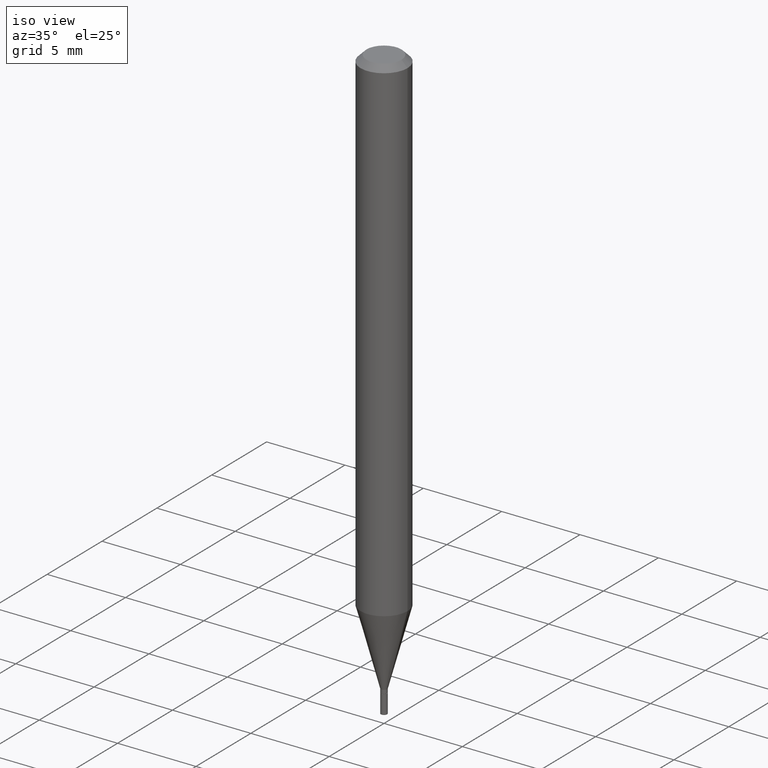
[diagram: clean part render]
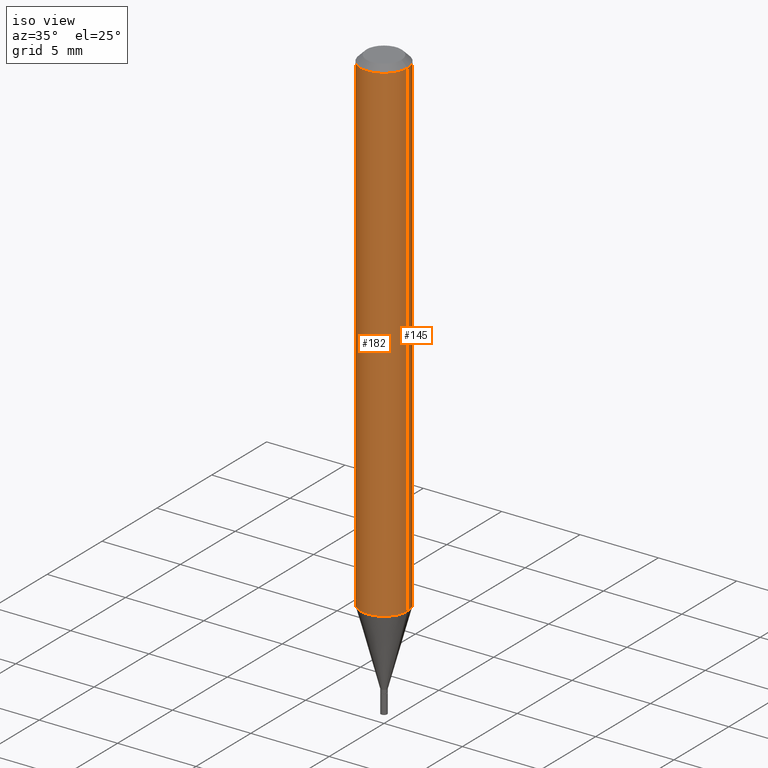
[diagram: same view with one multi-face feature highlighted, each face labeled with its STEP entity id]
A machine part, iso view. The highlighted faces form ONE feature: a constant-radius fillet chain: 2 tangent blend faces with common blend radius 1.4999 mm. The faces share edges in the B-rep.
Their STEP definitions:
[1] entity #145 (Cylinder):
#15 = LINE ( 'NONE', #246, #107 ) ;
#16 = ORIENTED_EDGE ( 'NONE', *, *, #454, .F. ) ;
#17 = LINE ( 'NONE', #400, #273 ) ;
#40 = DIRECTION ( 'NONE',  ( -2.445468806185136877E-29, 3.491481338843145188E-15, 1.000000000000000000 ) ) ;
#50 = CIRCLE ( 'NONE', #325, 0.05904999999999999832 ) ;
#54 = VERTEX_POINT ( 'NONE', #361 ) ;
#59 = DIRECTION ( 'NONE',  ( -2.445468806185136597E-29, 3.491481338843145583E-15, 1.000000000000000000 ) ) ;
#62 = AXIS2_PLACEMENT_3D ( 'NONE', #413, #375, #301 ) ;
#65 = DIRECTION ( 'NONE',  ( -2.445468806185136597E-29, 3.491481338843145583E-15, 1.000000000000000000 ) ) ;
#69 = DIRECTION ( 'NONE',  ( -2.445468806185136877E-29, 3.491481338843145188E-15, 1.000000000000000000 ) ) ;
#81 = VERTEX_POINT ( 'NONE', #461 ) ;
#106 = ORIENTED_EDGE ( 'NONE', *, *, #215, .T. ) ;
#107 = VECTOR ( 'NONE', #40, 39.37007874015748143 ) ;
#126 = CARTESIAN_POINT ( 'NONE',  ( 0.000000000000000000, 0.000000000000000000, 0.000000000000000000 ) ) ;
#136 = AXIS2_PLACEMENT_3D ( 'NONE', #126, #59, #205 ) ;
#145 = ADVANCED_FACE ( 'NONE', ( #452 ), #209, .T. ) ;
#175 = CARTESIAN_POINT ( 'NONE',  ( 0.05904999999999999138, -4.769778990434194719E-15, -1.248018998652473677 ) ) ;
#205 = DIRECTION ( 'NONE',  ( 1.000000000000000000, -6.982962677686266711E-15, 4.876176775795936353E-29 ) ) ;
#209 = CYLINDRICAL_SURFACE ( 'NONE', #136, 0.05904999999999999832 ) ;
#215 = EDGE_CURVE ( 'NONE', #81, #392, #17, .T. ) ;
#241 = ORIENTED_EDGE ( 'NONE', *, *, #430, .T. ) ;
#243 = EDGE_LOOP ( 'NONE', ( #241, #106, #287, #16 ) ) ;
#246 = CARTESIAN_POINT ( 'NONE',  ( 0.05904999999999999832, -4.123439461173740327E-16, 2.879382386107500220E-30 ) ) ;
#273 = VECTOR ( 'NONE', #69, 39.37007874015748143 ) ;
#287 = ORIENTED_EDGE ( 'NONE', *, *, #321, .F. ) ;
#297 = CIRCLE ( 'NONE', #62, 0.05904999999999999832 ) ;
#301 = DIRECTION ( 'NONE',  ( 1.000000000000000000, -6.982962677686266711E-15, 0.000000000000000000 ) ) ;
#321 = EDGE_CURVE ( 'NONE', #54, #392, #297, .T. ) ;
#322 = DIRECTION ( 'NONE',  ( 1.000000000000000000, -6.982962677686273021E-15, 0.000000000000000000 ) ) ;
#325 = AXIS2_PLACEMENT_3D ( 'NONE', #354, #65, #322 ) ;
#351 = CARTESIAN_POINT ( 'NONE',  ( -0.05904999999999999832, -1.785328146733394932E-15, -0.01499999999999999944 ) ) ;
#354 = CARTESIAN_POINT ( 'NONE',  ( 3.051991530731034752E-29, -4.357435044316820587E-15, -1.248018998652473677 ) ) ;
#361 = CARTESIAN_POINT ( 'NONE',  ( 0.05904999999999999832, -4.647161662000212105E-16, -0.01499999999999999944 ) ) ;
#375 = DIRECTION ( 'NONE',  ( -2.445468806185136597E-29, 3.491481338843145583E-15, 1.000000000000000000 ) ) ;
#392 = VERTEX_POINT ( 'NONE', #351 ) ;
#400 = CARTESIAN_POINT ( 'NONE',  ( -0.05904999999999999832, 4.195754854663391478E-16, -2.904631170795521892E-30 ) ) ;
#406 = VERTEX_POINT ( 'NONE', #175 ) ;
#413 = CARTESIAN_POINT ( 'NONE',  ( 3.668203209277705088E-31, -5.237222008264718399E-17, -0.01499999999999999944 ) ) ;
#430 = EDGE_CURVE ( 'NONE', #406, #81, #50, .T. ) ;
#452 = FACE_OUTER_BOUND ( 'NONE', #243, .T. ) ;
#454 = EDGE_CURVE ( 'NONE', #406, #54, #15, .T. ) ;
#461 = CARTESIAN_POINT ( 'NONE',  ( -0.05904999999999999138, -3.937859558850481883E-15, -1.248018998652473677 ) ) ;
[2] entity #182 (Cylinder):
#8 = DIRECTION ( 'NONE',  ( 1.000000000000000000, -6.982962677686266711E-15, 4.876176775795936353E-29 ) ) ;
#15 = LINE ( 'NONE', #246, #107 ) ;
#17 = LINE ( 'NONE', #400, #273 ) ;
#40 = DIRECTION ( 'NONE',  ( -2.445468806185136877E-29, 3.491481338843145188E-15, 1.000000000000000000 ) ) ;
#54 = VERTEX_POINT ( 'NONE', #361 ) ;
#69 = DIRECTION ( 'NONE',  ( -2.445468806185136877E-29, 3.491481338843145188E-15, 1.000000000000000000 ) ) ;
#72 = ORIENTED_EDGE ( 'NONE', *, *, #140, .F. ) ;
#73 = ORIENTED_EDGE ( 'NONE', *, *, #215, .F. ) ;
#81 = VERTEX_POINT ( 'NONE', #461 ) ;
#107 = VECTOR ( 'NONE', #40, 39.37007874015748143 ) ;
#110 = CARTESIAN_POINT ( 'NONE',  ( 0.000000000000000000, 0.000000000000000000, 0.000000000000000000 ) ) ;
#140 = EDGE_CURVE ( 'NONE', #392, #54, #183, .T. ) ;
#157 = FACE_OUTER_BOUND ( 'NONE', #440, .T. ) ;
#167 = CARTESIAN_POINT ( 'NONE',  ( 3.668203209277705088E-31, -5.237222008264718399E-17, -0.01499999999999999944 ) ) ;
#175 = CARTESIAN_POINT ( 'NONE',  ( 0.05904999999999999138, -4.769778990434194719E-15, -1.248018998652473677 ) ) ;
#182 = ADVANCED_FACE ( 'NONE', ( #157 ), #328, .T. ) ;
#183 = CIRCLE ( 'NONE', #282, 0.05904999999999999832 ) ;
#214 = CARTESIAN_POINT ( 'NONE',  ( 3.051991530731034752E-29, -4.357435044316820587E-15, -1.248018998652473677 ) ) ;
#215 = EDGE_CURVE ( 'NONE', #81, #392, #17, .T. ) ;
#221 = EDGE_CURVE ( 'NONE', #81, #406, #441, .T. ) ;
#246 = CARTESIAN_POINT ( 'NONE',  ( 0.05904999999999999832, -4.123439461173740327E-16, 2.879382386107500220E-30 ) ) ;
#273 = VECTOR ( 'NONE', #69, 39.37007874015748143 ) ;
#282 = AXIS2_PLACEMENT_3D ( 'NONE', #167, #350, #388 ) ;
#289 = DIRECTION ( 'NONE',  ( -2.445468806185136597E-29, 3.491481338843145583E-15, 1.000000000000000000 ) ) ;
#319 = DIRECTION ( 'NONE',  ( -2.445468806185136597E-29, 3.491481338843145583E-15, 1.000000000000000000 ) ) ;
#328 = CYLINDRICAL_SURFACE ( 'NONE', #363, 0.05904999999999999832 ) ;
#349 = AXIS2_PLACEMENT_3D ( 'NONE', #214, #289, #436 ) ;
#350 = DIRECTION ( 'NONE',  ( -2.445468806185136597E-29, 3.491481338843145583E-15, 1.000000000000000000 ) ) ;
#351 = CARTESIAN_POINT ( 'NONE',  ( -0.05904999999999999832, -1.785328146733394932E-15, -0.01499999999999999944 ) ) ;
#357 = ORIENTED_EDGE ( 'NONE', *, *, #221, .T. ) ;
#361 = CARTESIAN_POINT ( 'NONE',  ( 0.05904999999999999832, -4.647161662000212105E-16, -0.01499999999999999944 ) ) ;
#363 = AXIS2_PLACEMENT_3D ( 'NONE', #110, #319, #8 ) ;
#388 = DIRECTION ( 'NONE',  ( 1.000000000000000000, -6.982962677686266711E-15, 0.000000000000000000 ) ) ;
#392 = VERTEX_POINT ( 'NONE', #351 ) ;
#400 = CARTESIAN_POINT ( 'NONE',  ( -0.05904999999999999832, 4.195754854663391478E-16, -2.904631170795521892E-30 ) ) ;
#406 = VERTEX_POINT ( 'NONE', #175 ) ;
#436 = DIRECTION ( 'NONE',  ( 1.000000000000000000, -6.982962677686273021E-15, 0.000000000000000000 ) ) ;
#440 = EDGE_LOOP ( 'NONE', ( #73, #357, #447, #72 ) ) ;
#441 = CIRCLE ( 'NONE', #349, 0.05904999999999999832 ) ;
#447 = ORIENTED_EDGE ( 'NONE', *, *, #454, .T. ) ;
#454 = EDGE_CURVE ( 'NONE', #406, #54, #15, .T. ) ;
#461 = CARTESIAN_POINT ( 'NONE',  ( -0.05904999999999999138, -3.937859558850481883E-15, -1.248018998652473677 ) ) ;